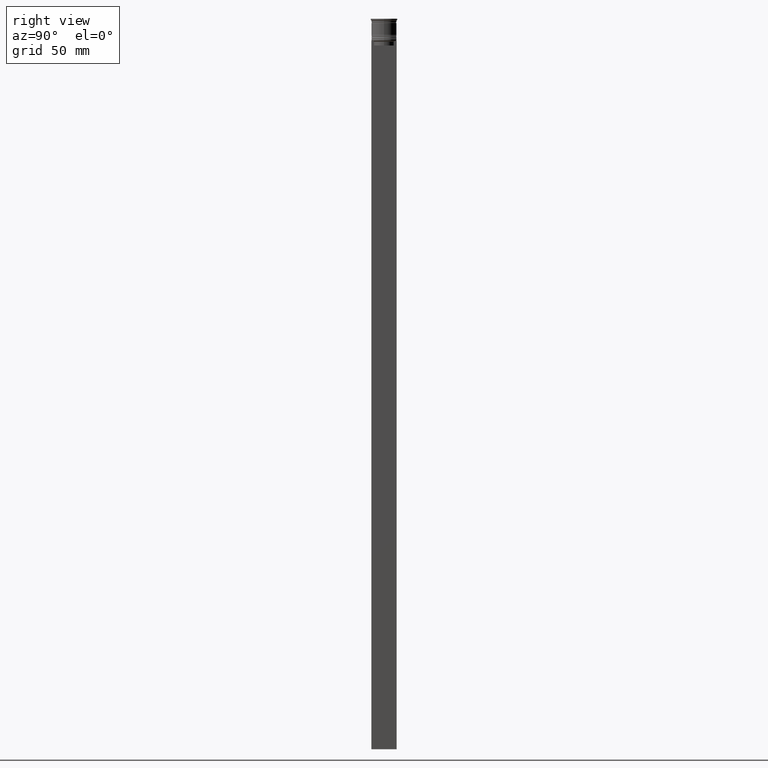
[diagram: clean part render]
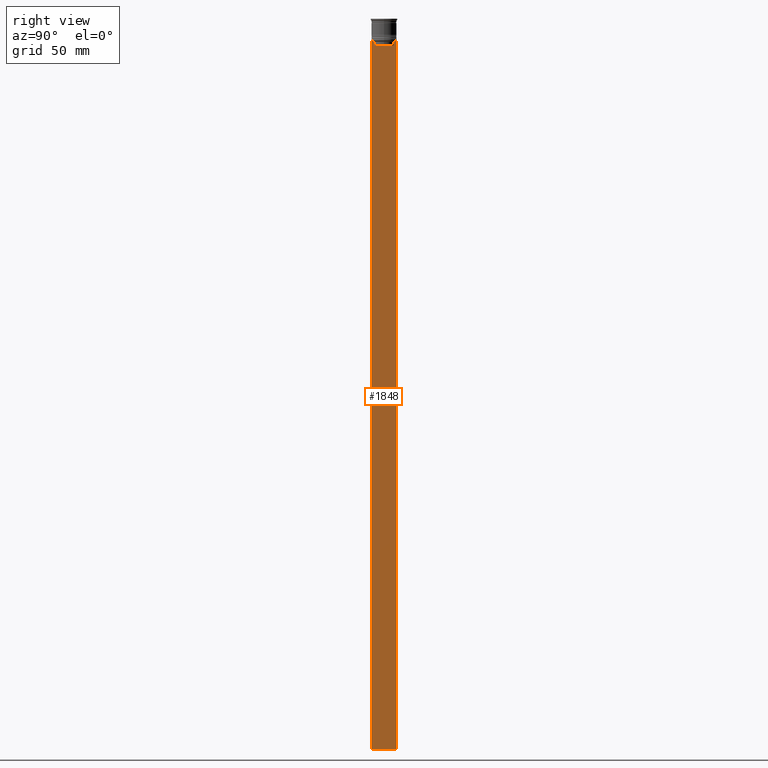
[diagram: same view with one face highlighted and labeled with its STEP entity id]
A machine part, right view. The second image highlights one B-rep face of the part: STEP entity #1848.
In plain terms, the highlighted planar face has unit normal (-1, 0, 0).
Its self-contained STEP definition (entity closure, byte-faithful):
#4 = LINE ( 'NONE', #2485, #20 ) ;
#10 = CARTESIAN_POINT ( 'NONE',  ( 0.5000000000000001110, 7.999999999999996447, -14.00000000000000178 ) ) ;
#20 = VECTOR ( 'NONE', #1526, 1000.000000000000000 ) ;
#58 = VERTEX_POINT ( 'NONE', #1998 ) ;
#75 = VERTEX_POINT ( 'NONE', #2277 ) ;
#93 = EDGE_CURVE ( 'NONE', #1119, #2363, #140, .T. ) ;
#107 = AXIS2_PLACEMENT_3D ( 'NONE', #907, #216, #1736 ) ;
#116 = LINE ( 'NONE', #872, #1952 ) ;
#140 = B_SPLINE_CURVE_WITH_KNOTS ( 'NONE', 3,
 ( #1296, #1505, #909, #2091 ),
 .UNSPECIFIED., .F., .F.,
 ( 4, 4 ),
 ( 0.02996184199614751464, 0.03067452609193705923 ),
 .UNSPECIFIED. ) ;
#201 = EDGE_CURVE ( 'NONE', #335, #58, #538, .T. ) ;
#203 = PLANE ( 'NONE',  #107 ) ;
#216 = DIRECTION ( 'NONE',  ( -1.000000000000000000, 0.000000000000000000, 0.000000000000000000 ) ) ;
#262 = VECTOR ( 'NONE', #2311, 1000.000000000000000 ) ;
#265 = VECTOR ( 'NONE', #942, 1000.000000000000000 ) ;
#296 = VERTEX_POINT ( 'NONE', #1237 ) ;
#334 = EDGE_CURVE ( 'NONE', #75, #797, #1455, .T. ) ;
#335 = VERTEX_POINT ( 'NONE', #1437 ) ;
#361 = CARTESIAN_POINT ( 'NONE',  ( 0.5000000000000001110, 6.881860213634098500, -14.00000000000000178 ) ) ;
#379 = EDGE_CURVE ( 'NONE', #2032, #1119, #1882, .T. ) ;
#390 = ORIENTED_EDGE ( 'NONE', *, *, #841, .F. ) ;
#400 = CARTESIAN_POINT ( 'NONE',  ( 0.5000000000000001110, 7.999999999999996447, -464.0000000000000000 ) ) ;
#422 = EDGE_CURVE ( 'NONE', #58, #2044, #4, .T. ) ;
#447 = CARTESIAN_POINT ( 'NONE',  ( 0.5000000000000001110, 6.547597841304911626, -14.33335192459222718 ) ) ;
#486 = CARTESIAN_POINT ( 'NONE',  ( 0.5000000000000001110, -6.380438856379708312, -14.50000000000000000 ) ) ;
#538 = LINE ( 'NONE', #1108, #2004 ) ;
#542 = CARTESIAN_POINT ( 'NONE',  ( 0.5000000000000001110, 7.999999999999996447, 2.031219541881394530 ) ) ;
#548 = LINE ( 'NONE', #1874, #1786 ) ;
#624 = CARTESIAN_POINT ( 'NONE',  ( 0.5000000000000001110, 6.881860213634098500, -14.00000000000000178 ) ) ;
#659 = EDGE_CURVE ( 'NONE', #797, #1242, #1614, .T. ) ;
#697 = DIRECTION ( 'NONE',  ( 0.000000000000000000, -1.000000000000000000, 0.000000000000000000 ) ) ;
#706 = EDGE_CURVE ( 'NONE', #2363, #2243, #1433, .T. ) ;
#708 = ORIENTED_EDGE ( 'NONE', *, *, #93, .T. ) ;
#720 = VECTOR ( 'NONE', #2005, 1000.000000000000000 ) ;
#791 = CARTESIAN_POINT ( 'NONE',  ( 0.5000000000000001110, 6.714736947114692711, -14.16668390704818847 ) ) ;
#797 = VERTEX_POINT ( 'NONE', #361 ) ;
#825 = CARTESIAN_POINT ( 'NONE',  ( 0.5000000000000001110, -7.884161337770806632, -14.00000000000000178 ) ) ;
#841 = EDGE_CURVE ( 'NONE', #1254, #2044, #2084, .T. ) ;
#846 = VECTOR ( 'NONE', #1769, 1000.000000000000000 ) ;
#870 = LINE ( 'NONE', #1669, #2226 ) ;
#872 = CARTESIAN_POINT ( 'NONE',  ( 0.5000000000000001110, -8.000000000000003553, -14.00000000000000178 ) ) ;
#907 = CARTESIAN_POINT ( 'NONE',  ( 0.5000000000000001110, -8.000000000000003553, 2.031219541881394530 ) ) ;
#909 = CARTESIAN_POINT ( 'NONE',  ( 0.5000000000000001110, -6.714736947305993908, -14.16668390685738821 ) ) ;
#923 = CARTESIAN_POINT ( 'NONE',  ( 0.5000000000000001110, 6.380438856379708312, -14.50000000000000000 ) ) ;
#942 = DIRECTION ( 'NONE',  ( 0.000000000000000000, 0.000000000000000000, -1.000000000000000000 ) ) ;
#1069 = CARTESIAN_POINT ( 'NONE',  ( 0.5000000000000001110, -8.000000000000003553, -14.00000000000000178 ) ) ;
#1108 = CARTESIAN_POINT ( 'NONE',  ( 0.5000000000000001110, -8.000000000000003553, 2.031219541881394530 ) ) ;
#1119 = VERTEX_POINT ( 'NONE', #486 ) ;
#1199 = CARTESIAN_POINT ( 'NONE',  ( 0.5000000000000001110, 6.380438856379708312, -14.50000000000000000 ) ) ;
#1237 = CARTESIAN_POINT ( 'NONE',  ( 0.5000000000000001110, 6.380438856379708312, -17.00000000000000000 ) ) ;
#1242 = VERTEX_POINT ( 'NONE', #923 ) ;
#1251 = ORIENTED_EDGE ( 'NONE', *, *, #706, .T. ) ;
#1254 = VERTEX_POINT ( 'NONE', #10 ) ;
#1296 = CARTESIAN_POINT ( 'NONE',  ( 0.5000000000000001110, -6.380438856379708312, -14.50000000000000000 ) ) ;
#1302 = CARTESIAN_POINT ( 'NONE',  ( 0.5000000000000001110, -6.380438856379708312, -17.00000000000000000 ) ) ;
#1325 = ORIENTED_EDGE ( 'NONE', *, *, #422, .T. ) ;
#1388 = EDGE_CURVE ( 'NONE', #1242, #296, #2356, .T. ) ;
#1395 = ORIENTED_EDGE ( 'NONE', *, *, #334, .T. ) ;
#1433 = LINE ( 'NONE', #1069, #1940 ) ;
#1437 = CARTESIAN_POINT ( 'NONE',  ( 0.5000000000000001110, -8.000000000000003553, -14.00000000000000178 ) ) ;
#1455 = LINE ( 'NONE', #2230, #720 ) ;
#1505 = CARTESIAN_POINT ( 'NONE',  ( 0.5000000000000001110, -6.547597841511247019, -14.33335192438652150 ) ) ;
#1526 = DIRECTION ( 'NONE',  ( 0.000000000000000000, 1.000000000000000000, 0.000000000000000000 ) ) ;
#1528 = DIRECTION ( 'NONE',  ( 0.000000000000000000, -1.000000000000000000, 0.000000000000000000 ) ) ;
#1553 = EDGE_LOOP ( 'NONE', ( #1395, #2388, #1802, #2024, #1596, #708, #1251, #2373, #1776, #1325, #390, #1666 ) ) ;
#1596 = ORIENTED_EDGE ( 'NONE', *, *, #379, .T. ) ;
#1614 = B_SPLINE_CURVE_WITH_KNOTS ( 'NONE', 3,
 ( #624, #791, #447, #1199 ),
 .UNSPECIFIED., .F., .F.,
 ( 4, 4 ),
 ( 0.01172465562756038263, 0.01243276816391822651 ),
 .UNSPECIFIED. ) ;
#1655 = DIRECTION ( 'NONE',  ( 0.000000000000000000, -1.000000000000000000, 0.000000000000000000 ) ) ;
#1666 = ORIENTED_EDGE ( 'NONE', *, *, #1777, .T. ) ;
#1669 = CARTESIAN_POINT ( 'NONE',  ( 0.5000000000000001110, 6.399999999999999467, -17.00000000000000000 ) ) ;
#1679 = DIRECTION ( 'NONE',  ( 0.000000000000000000, 0.000000000000000000, -1.000000000000000000 ) ) ;
#1690 = FACE_OUTER_BOUND ( 'NONE', #1553, .T. ) ;
#1736 = DIRECTION ( 'NONE',  ( 0.000000000000000000, 0.000000000000000000, 1.000000000000000000 ) ) ;
#1769 = DIRECTION ( 'NONE',  ( 0.000000000000000000, 0.000000000000000000, -1.000000000000000000 ) ) ;
#1776 = ORIENTED_EDGE ( 'NONE', *, *, #201, .T. ) ;
#1777 = EDGE_CURVE ( 'NONE', #1254, #75, #548, .T. ) ;
#1786 = VECTOR ( 'NONE', #1528, 1000.000000000000000 ) ;
#1802 = ORIENTED_EDGE ( 'NONE', *, *, #1388, .T. ) ;
#1837 = DIRECTION ( 'NONE',  ( 0.000000000000000000, -1.000000000000000000, 0.000000000000000000 ) ) ;
#1848 = ADVANCED_FACE ( 'NONE', ( #1690 ), #203, .F. ) ;
#1874 = CARTESIAN_POINT ( 'NONE',  ( 0.5000000000000001110, -8.000000000000003553, -14.00000000000000178 ) ) ;
#1882 = LINE ( 'NONE', #2325, #262 ) ;
#1940 = VECTOR ( 'NONE', #1837, 1000.000000000000000 ) ;
#1952 = VECTOR ( 'NONE', #697, 1000.000000000000000 ) ;
#1998 = CARTESIAN_POINT ( 'NONE',  ( 0.5000000000000001110, -8.000000000000003553, -464.0000000000000000 ) ) ;
#2004 = VECTOR ( 'NONE', #1679, 1000.000000000000000 ) ;
#2005 = DIRECTION ( 'NONE',  ( 0.000000000000000000, -1.000000000000000000, 0.000000000000000000 ) ) ;
#2024 = ORIENTED_EDGE ( 'NONE', *, *, #2219, .T. ) ;
#2032 = VERTEX_POINT ( 'NONE', #1302 ) ;
#2044 = VERTEX_POINT ( 'NONE', #400 ) ;
#2084 = LINE ( 'NONE', #542, #265 ) ;
#2091 = CARTESIAN_POINT ( 'NONE',  ( 0.5000000000000001110, -6.881860213634098500, -14.00000000000000178 ) ) ;
#2219 = EDGE_CURVE ( 'NONE', #296, #2032, #870, .T. ) ;
#2226 = VECTOR ( 'NONE', #1655, 1000.000000000000000 ) ;
#2230 = CARTESIAN_POINT ( 'NONE',  ( 0.5000000000000001110, -8.000000000000003553, -14.00000000000000178 ) ) ;
#2243 = VERTEX_POINT ( 'NONE', #825 ) ;
#2277 = CARTESIAN_POINT ( 'NONE',  ( 0.5000000000000001110, 7.884161337770806632, -14.00000000000000178 ) ) ;
#2311 = DIRECTION ( 'NONE',  ( -0.000000000000000000, -0.000000000000000000, 1.000000000000000000 ) ) ;
#2325 = CARTESIAN_POINT ( 'NONE',  ( 0.5000000000000001110, -6.380438856379708312, 0.000000000000000000 ) ) ;
#2330 = CARTESIAN_POINT ( 'NONE',  ( 0.5000000000000001110, 6.380438856379708312, 0.000000000000000000 ) ) ;
#2356 = LINE ( 'NONE', #2330, #846 ) ;
#2363 = VERTEX_POINT ( 'NONE', #2404 ) ;
#2373 = ORIENTED_EDGE ( 'NONE', *, *, #2418, .T. ) ;
#2388 = ORIENTED_EDGE ( 'NONE', *, *, #659, .T. ) ;
#2404 = CARTESIAN_POINT ( 'NONE',  ( 0.5000000000000001110, -6.881860213634098500, -14.00000000000000178 ) ) ;
#2418 = EDGE_CURVE ( 'NONE', #2243, #335, #116, .T. ) ;
#2485 = CARTESIAN_POINT ( 'NONE',  ( 0.5000000000000001110, -8.000000000000003553, -464.0000000000000000 ) ) ;